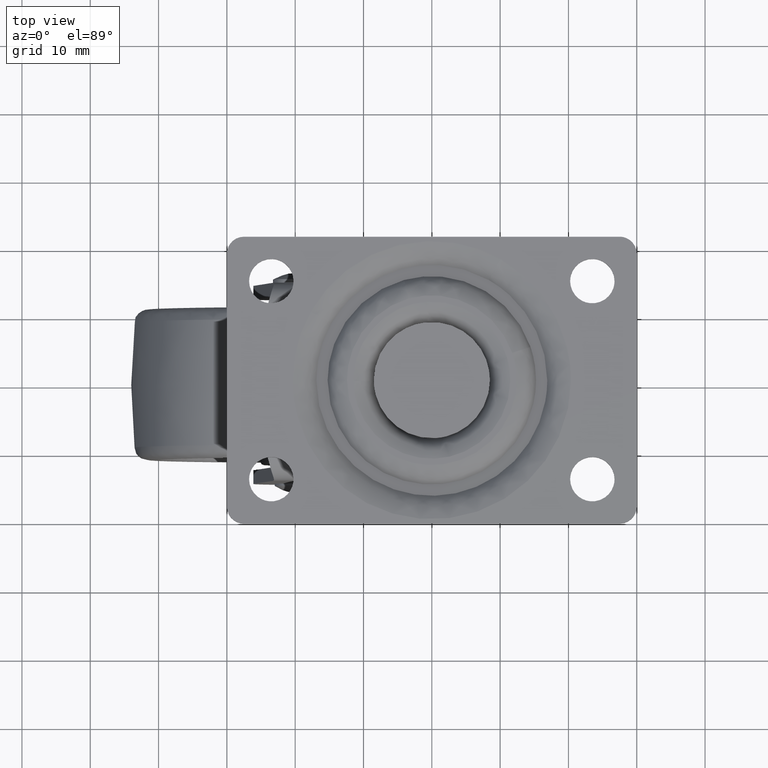
[diagram: clean part render]
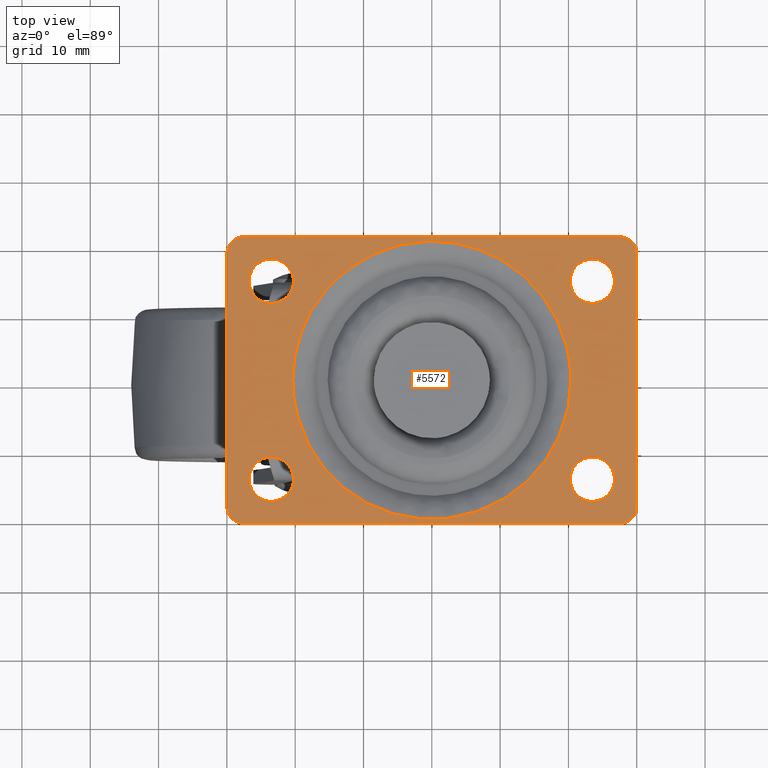
[diagram: same view with one face highlighted and labeled with its STEP entity id]
A machine part, top view. The second image highlights one B-rep face of the part: STEP entity #5572.
In plain terms, the highlighted face is a freeform B-spline surface patch.
Its self-contained STEP definition (entity closure, byte-faithful):
#3399=CARTESIAN_POINT('',(-23.883618262806088,11.272719039338490,-1.064786E-016));
#3400=VERTEX_POINT('',#3399);
#3401=CARTESIAN_POINT('',(-20.250007000000000,14.500000000000000,0.0));
#3402=VERTEX_POINT('',#3401);
#3403=CARTESIAN_POINT('',(-23.883618262806092,11.272719039338483,-1.064786E-016));
#3404=CARTESIAN_POINT('',(-23.692485389042140,11.249999999999996,0.0));
#3405=CARTESIAN_POINT('',(-23.500007000000000,11.250000000000000,0.0));
#3406=CARTESIAN_POINT('',(-20.250007000000007,11.250000000000000,0.0));
#3407=CARTESIAN_POINT('',(-20.250007000000000,14.500000000000000,0.0));
#3415=(BOUNDED_CURVE()B_SPLINE_CURVE(2,(#3403,#3404,#3405,#3406,#3407),.UNSPECIFIED.,.F.,.U.)B_SPLINE_CURVE_WITH_KNOTS((3,2,3),(0.229562473497670,0.250000000000000,0.500000000000000),.UNSPECIFIED.)CURVE()GEOMETRIC_REPRESENTATION_ITEM()RATIONAL_B_SPLINE_CURVE((0.956026754152655,0.976055948312589,1.0,0.707106781186547,1.0))REPRESENTATION_ITEM(''));
#3416=EDGE_CURVE('',#3400,#3402,#3415,.T.);
#3418=CARTESIAN_POINT('',(-23.301599246302029,17.743938094858240,-1.075529E-016));
#3419=VERTEX_POINT('',#3418);
#3420=CARTESIAN_POINT('',(-20.250007000000000,14.500000000000000,0.0));
#3421=CARTESIAN_POINT('',(-20.250006999999997,17.557294717047544,0.0));
#3422=CARTESIAN_POINT('',(-23.301599246302025,17.743938094858240,-1.075529E-016));
#3430=(BOUNDED_CURVE()B_SPLINE_CURVE(2,(#3420,#3421,#3422),.UNSPECIFIED.,.F.,.U.)B_SPLINE_CURVE_WITH_KNOTS((3,3),(0.500000000000000,0.739332962219663),.UNSPECIFIED.)CURVE()GEOMETRIC_REPRESENTATION_ITEM()RATIONAL_B_SPLINE_CURVE((1.0,0.719603993309298,0.976072041625397))REPRESENTATION_ITEM(''));
#3431=EDGE_CURVE('',#3402,#3419,#3430,.T.);
#3498=CARTESIAN_POINT('',(-26.750007000000000,14.500000000000000,0.0));
#3499=VERTEX_POINT('',#3498);
#3500=CARTESIAN_POINT('',(-26.750007000000000,14.500000000000000,0.0));
#3501=CARTESIAN_POINT('',(-26.750006999999997,11.613432790967222,0.0));
#3502=CARTESIAN_POINT('',(-23.883618262806088,11.272719039338481,-1.064786E-016));
#3510=(BOUNDED_CURVE()B_SPLINE_CURVE(2,(#3500,#3501,#3502),.UNSPECIFIED.,.F.,.U.)B_SPLINE_CURVE_WITH_KNOTS((3,3),(0.0,0.229562473497670),.UNSPECIFIED.)CURVE()GEOMETRIC_REPRESENTATION_ITEM()RATIONAL_B_SPLINE_CURVE((1.0,0.731050832873959,0.956026754152655))REPRESENTATION_ITEM(''));
#3511=EDGE_CURVE('',#3499,#3400,#3510,.T.);
#3545=CARTESIAN_POINT('',(-23.301599246302032,17.743938094858244,-1.075529E-016));
#3546=CARTESIAN_POINT('',(-23.400710519069314,17.750000000000004,0.0));
#3547=CARTESIAN_POINT('',(-23.500007000000000,17.750000000000000,0.0));
#3548=CARTESIAN_POINT('',(-26.750006999999997,17.750000000000004,0.0));
#3549=CARTESIAN_POINT('',(-26.750007000000000,14.500000000000000,0.0));
#3557=(BOUNDED_CURVE()B_SPLINE_CURVE(2,(#3545,#3546,#3547,#3548,#3549),.UNSPECIFIED.,.F.,.U.)B_SPLINE_CURVE_WITH_KNOTS((3,2,3),(0.739332962219662,0.750000000000000,1.0),.UNSPECIFIED.)CURVE()GEOMETRIC_REPRESENTATION_ITEM()RATIONAL_B_SPLINE_CURVE((0.976072041625395,0.987502787877248,1.0,0.707106781186547,1.0))REPRESENTATION_ITEM(''));
#3558=EDGE_CURVE('',#3419,#3499,#3557,.T.);
#3585=CARTESIAN_POINT('',(23.116381737193912,11.272719039338490,-1.064786E-016));
#3586=VERTEX_POINT('',#3585);
#3587=CARTESIAN_POINT('',(26.749993000000000,14.500000000000000,0.0));
#3588=VERTEX_POINT('',#3587);
#3589=CARTESIAN_POINT('',(23.116381737193912,11.272719039338483,-1.064786E-016));
#3590=CARTESIAN_POINT('',(23.307514610957860,11.249999999999998,0.0));
#3591=CARTESIAN_POINT('',(23.499993000000000,11.250000000000000,0.0));
#3592=CARTESIAN_POINT('',(26.749993000000003,11.250000000000000,0.0));
#3593=CARTESIAN_POINT('',(26.749993000000000,14.500000000000000,0.0));
#3601=(BOUNDED_CURVE()B_SPLINE_CURVE(2,(#3589,#3590,#3591,#3592,#3593),.UNSPECIFIED.,.F.,.U.)B_SPLINE_CURVE_WITH_KNOTS((3,2,3),(0.229562473497670,0.250000000000000,0.500000000000000),.UNSPECIFIED.)CURVE()GEOMETRIC_REPRESENTATION_ITEM()RATIONAL_B_SPLINE_CURVE((0.956026754152655,0.976055948312589,1.0,0.707106781186547,1.0))REPRESENTATION_ITEM(''));
#3602=EDGE_CURVE('',#3586,#3588,#3601,.T.);
#3604=CARTESIAN_POINT('',(23.698400753697971,17.743938094858240,-1.075529E-016));
#3605=VERTEX_POINT('',#3604);
#3606=CARTESIAN_POINT('',(26.749993000000000,14.500000000000000,0.0));
#3607=CARTESIAN_POINT('',(26.749993000000007,17.557294717047544,0.0));
#3608=CARTESIAN_POINT('',(23.698400753697964,17.743938094858240,-1.075529E-016));
#3616=(BOUNDED_CURVE()B_SPLINE_CURVE(2,(#3606,#3607,#3608),.UNSPECIFIED.,.F.,.U.)B_SPLINE_CURVE_WITH_KNOTS((3,3),(0.500000000000000,0.739332962219663),.UNSPECIFIED.)CURVE()GEOMETRIC_REPRESENTATION_ITEM()RATIONAL_B_SPLINE_CURVE((1.0,0.719603993309298,0.976072041625397))REPRESENTATION_ITEM(''));
#3617=EDGE_CURVE('',#3588,#3605,#3616,.T.);
#3684=CARTESIAN_POINT('',(20.249993000000000,14.500000000000000,0.0));
#3685=VERTEX_POINT('',#3684);
#3686=CARTESIAN_POINT('',(20.249993000000000,14.500000000000000,0.0));
#3687=CARTESIAN_POINT('',(20.249993000000003,11.613432790967225,0.0));
#3688=CARTESIAN_POINT('',(23.116381737193908,11.272719039338485,-1.064786E-016));
#3696=(BOUNDED_CURVE()B_SPLINE_CURVE(2,(#3686,#3687,#3688),.UNSPECIFIED.,.F.,.U.)B_SPLINE_CURVE_WITH_KNOTS((3,3),(0.0,0.229562473497669),.UNSPECIFIED.)CURVE()GEOMETRIC_REPRESENTATION_ITEM()RATIONAL_B_SPLINE_CURVE((1.0,0.731050832873959,0.956026754152654))REPRESENTATION_ITEM(''));
#3697=EDGE_CURVE('',#3685,#3586,#3696,.T.);
#3731=CARTESIAN_POINT('',(23.698400753697968,17.743938094858244,-1.075529E-016));
#3732=CARTESIAN_POINT('',(23.599289480930683,17.750000000000007,0.0));
#3733=CARTESIAN_POINT('',(23.499993000000000,17.750000000000000,0.0));
#3734=CARTESIAN_POINT('',(20.249993000000003,17.750000000000004,0.0));
#3735=CARTESIAN_POINT('',(20.249993000000000,14.500000000000000,0.0));
#3743=(BOUNDED_CURVE()B_SPLINE_CURVE(2,(#3731,#3732,#3733,#3734,#3735),.UNSPECIFIED.,.F.,.U.)B_SPLINE_CURVE_WITH_KNOTS((3,2,3),(0.739332962219662,0.750000000000000,1.0),.UNSPECIFIED.)CURVE()GEOMETRIC_REPRESENTATION_ITEM()RATIONAL_B_SPLINE_CURVE((0.976072041625396,0.987502787877249,1.0,0.707106781186547,1.0))REPRESENTATION_ITEM(''));
#3744=EDGE_CURVE('',#3605,#3685,#3743,.T.);
#3771=CARTESIAN_POINT('',(23.116381737193912,-17.727280960661520,-1.064786E-016));
#3772=VERTEX_POINT('',#3771);
#3773=CARTESIAN_POINT('',(26.749993000000000,-14.500000000000000,0.0));
#3774=VERTEX_POINT('',#3773);
#3775=CARTESIAN_POINT('',(23.116381737193908,-17.727280960661520,-1.064786E-016));
#3776=CARTESIAN_POINT('',(23.307514610957849,-17.750000000000004,0.0));
#3777=CARTESIAN_POINT('',(23.499993000000000,-17.750000000000000,0.0));
#3778=CARTESIAN_POINT('',(26.749993000000003,-17.750000000000004,0.0));
#3779=CARTESIAN_POINT('',(26.749993000000000,-14.500000000000000,0.0));
#3787=(BOUNDED_CURVE()B_SPLINE_CURVE(2,(#3775,#3776,#3777,#3778,#3779),.UNSPECIFIED.,.F.,.U.)B_SPLINE_CURVE_WITH_KNOTS((3,2,3),(0.229562473497669,0.250000000000000,0.500000000000000),.UNSPECIFIED.)CURVE()GEOMETRIC_REPRESENTATION_ITEM()RATIONAL_B_SPLINE_CURVE((0.956026754152654,0.976055948312589,1.0,0.707106781186547,1.0))REPRESENTATION_ITEM(''));
#3788=EDGE_CURVE('',#3772,#3774,#3787,.T.);
#3790=CARTESIAN_POINT('',(23.698400753697971,-11.256061905141760,-1.075529E-016));
#3791=VERTEX_POINT('',#3790);
#3792=CARTESIAN_POINT('',(26.749993000000000,-14.500000000000000,0.0));
#3793=CARTESIAN_POINT('',(26.749993000000007,-11.442705282952456,0.0));
#3794=CARTESIAN_POINT('',(23.698400753697964,-11.256061905141761,-1.075529E-016));
#3802=(BOUNDED_CURVE()B_SPLINE_CURVE(2,(#3792,#3793,#3794),.UNSPECIFIED.,.F.,.U.)B_SPLINE_CURVE_WITH_KNOTS((3,3),(0.500000000000000,0.739332962219663),.UNSPECIFIED.)CURVE()GEOMETRIC_REPRESENTATION_ITEM()RATIONAL_B_SPLINE_CURVE((1.0,0.719603993309298,0.976072041625397))REPRESENTATION_ITEM(''));
#3803=EDGE_CURVE('',#3774,#3791,#3802,.T.);
#3870=CARTESIAN_POINT('',(20.249993000000000,-14.500000000000000,0.0));
#3871=VERTEX_POINT('',#3870);
#3872=CARTESIAN_POINT('',(20.249993000000000,-14.500000000000000,0.0));
#3873=CARTESIAN_POINT('',(20.249993000000003,-17.386567209032769,0.0));
#3874=CARTESIAN_POINT('',(23.116381737193912,-17.727280960661520,-1.064786E-016));
#3882=(BOUNDED_CURVE()B_SPLINE_CURVE(2,(#3872,#3873,#3874),.UNSPECIFIED.,.F.,.U.)B_SPLINE_CURVE_WITH_KNOTS((3,3),(0.0,0.229562473497669),.UNSPECIFIED.)CURVE()GEOMETRIC_REPRESENTATION_ITEM()RATIONAL_B_SPLINE_CURVE((1.0,0.731050832873959,0.956026754152654))REPRESENTATION_ITEM(''));
#3883=EDGE_CURVE('',#3871,#3772,#3882,.T.);
#3917=CARTESIAN_POINT('',(23.698400753697968,-11.256061905141761,-1.075529E-016));
#3918=CARTESIAN_POINT('',(23.599289480930683,-11.250000000000002,0.0));
#3919=CARTESIAN_POINT('',(23.499993000000000,-11.250000000000000,0.0));
#3920=CARTESIAN_POINT('',(20.249993000000003,-11.250000000000000,0.0));
#3921=CARTESIAN_POINT('',(20.249993000000000,-14.500000000000000,0.0));
#3929=(BOUNDED_CURVE()B_SPLINE_CURVE(2,(#3917,#3918,#3919,#3920,#3921),.UNSPECIFIED.,.F.,.U.)B_SPLINE_CURVE_WITH_KNOTS((3,2,3),(0.739332962219662,0.750000000000000,1.0),.UNSPECIFIED.)CURVE()GEOMETRIC_REPRESENTATION_ITEM()RATIONAL_B_SPLINE_CURVE((0.976072041625396,0.987502787877249,1.0,0.707106781186547,1.0))REPRESENTATION_ITEM(''));
#3930=EDGE_CURVE('',#3791,#3871,#3929,.T.);
#3957=CARTESIAN_POINT('',(-23.883618262806088,-17.727280960661520,-1.064786E-016));
#3958=VERTEX_POINT('',#3957);
#3959=CARTESIAN_POINT('',(-20.250007000000000,-14.500000000000000,0.0));
#3960=VERTEX_POINT('',#3959);
#3961=CARTESIAN_POINT('',(-23.883618262806088,-17.727280960661520,-1.064786E-016));
#3962=CARTESIAN_POINT('',(-23.692485389042147,-17.750000000000007,0.0));
#3963=CARTESIAN_POINT('',(-23.500007000000000,-17.750000000000000,0.0));
#3964=CARTESIAN_POINT('',(-20.250007000000007,-17.750000000000004,0.0));
#3965=CARTESIAN_POINT('',(-20.250007000000000,-14.500000000000000,0.0));
#3973=(BOUNDED_CURVE()B_SPLINE_CURVE(2,(#3961,#3962,#3963,#3964,#3965),.UNSPECIFIED.,.F.,.U.)B_SPLINE_CURVE_WITH_KNOTS((3,2,3),(0.229562473497670,0.250000000000000,0.500000000000000),.UNSPECIFIED.)CURVE()GEOMETRIC_REPRESENTATION_ITEM()RATIONAL_B_SPLINE_CURVE((0.956026754152655,0.976055948312589,1.0,0.707106781186547,1.0))REPRESENTATION_ITEM(''));
#3974=EDGE_CURVE('',#3958,#3960,#3973,.T.);
#3976=CARTESIAN_POINT('',(-23.301599246302029,-11.256061905141760,-1.075529E-016));
#3977=VERTEX_POINT('',#3976);
#3978=CARTESIAN_POINT('',(-20.250007000000000,-14.500000000000000,0.0));
#3979=CARTESIAN_POINT('',(-20.250006999999997,-11.442705282952456,0.0));
#3980=CARTESIAN_POINT('',(-23.301599246302025,-11.256061905141761,-1.075529E-016));
#3988=(BOUNDED_CURVE()B_SPLINE_CURVE(2,(#3978,#3979,#3980),.UNSPECIFIED.,.F.,.U.)B_SPLINE_CURVE_WITH_KNOTS((3,3),(0.500000000000000,0.739332962219663),.UNSPECIFIED.)CURVE()GEOMETRIC_REPRESENTATION_ITEM()RATIONAL_B_SPLINE_CURVE((1.0,0.719603993309298,0.976072041625397))REPRESENTATION_ITEM(''));
#3989=EDGE_CURVE('',#3960,#3977,#3988,.T.);
#4056=CARTESIAN_POINT('',(-26.750007000000000,-14.500000000000000,0.0));
#4057=VERTEX_POINT('',#4056);
#4058=CARTESIAN_POINT('',(-26.750007000000000,-14.500000000000000,0.0));
#4059=CARTESIAN_POINT('',(-26.750007000000000,-17.386567209032780,0.0));
#4060=CARTESIAN_POINT('',(-23.883618262806092,-17.727280960661517,-1.064786E-016));
#4068=(BOUNDED_CURVE()B_SPLINE_CURVE(2,(#4058,#4059,#4060),.UNSPECIFIED.,.F.,.U.)B_SPLINE_CURVE_WITH_KNOTS((3,3),(0.0,0.229562473497670),.UNSPECIFIED.)CURVE()GEOMETRIC_REPRESENTATION_ITEM()RATIONAL_B_SPLINE_CURVE((1.0,0.731050832873958,0.956026754152655))REPRESENTATION_ITEM(''));
#4069=EDGE_CURVE('',#4057,#3958,#4068,.T.);
#4103=CARTESIAN_POINT('',(-23.301599246302032,-11.256061905141760,-1.075529E-016));
#4104=CARTESIAN_POINT('',(-23.400710519069314,-11.250000000000005,0.0));
#4105=CARTESIAN_POINT('',(-23.500007000000000,-11.250000000000000,0.0));
#4106=CARTESIAN_POINT('',(-26.750006999999997,-11.250000000000000,0.0));
#4107=CARTESIAN_POINT('',(-26.750007000000000,-14.500000000000000,0.0));
#4115=(BOUNDED_CURVE()B_SPLINE_CURVE(2,(#4103,#4104,#4105,#4106,#4107),.UNSPECIFIED.,.F.,.U.)B_SPLINE_CURVE_WITH_KNOTS((3,2,3),(0.739332962219662,0.750000000000000,1.0),.UNSPECIFIED.)CURVE()GEOMETRIC_REPRESENTATION_ITEM()RATIONAL_B_SPLINE_CURVE((0.976072041625395,0.987502787877248,1.0,0.707106781186547,1.0))REPRESENTATION_ITEM(''));
#4116=EDGE_CURVE('',#3977,#4057,#4115,.T.);
#4629=CARTESIAN_POINT('',(-17.720498814197430,10.033939125784650,-6.109730E-016));
#4630=VERTEX_POINT('',#4629);
#4644=CARTESIAN_POINT('',(-20.364087252914331,0.0,0.0));
#4645=VERTEX_POINT('',#4644);
#4646=CARTESIAN_POINT('',(-20.364087252914331,0.0,0.0));
#4647=CARTESIAN_POINT('',(-20.364087252914331,5.365215637857751,0.0));
#4648=CARTESIAN_POINT('',(-17.720498814197430,10.033939125784650,-6.109730E-016));
#4656=(BOUNDED_CURVE()B_SPLINE_CURVE(2,(#4646,#4647,#4648),.UNSPECIFIED.,.F.,.U.)B_SPLINE_CURVE_WITH_KNOTS((3,3),(0.0,0.083983638485495),.UNSPECIFIED.)CURVE()GEOMETRIC_REPRESENTATION_ITEM()RATIONAL_B_SPLINE_CURVE((1.0,0.901607047185272,0.869321279800244))REPRESENTATION_ITEM(''));
#4657=EDGE_CURVE('',#4645,#4630,#4656,.T.);
#4659=CARTESIAN_POINT('',(20.364073252914469,0.0,0.0));
#4660=VERTEX_POINT('',#4659);
#4661=CARTESIAN_POINT('',(20.364073252914469,0.0,0.0));
#4662=CARTESIAN_POINT('',(20.364073252914473,-20.364080252914405,0.0));
#4663=CARTESIAN_POINT('',(-0.000006999999925,-20.364080252914398,0.0));
#4664=CARTESIAN_POINT('',(-20.364087252914320,-20.364080252914405,0.0));
#4665=CARTESIAN_POINT('',(-20.364087252914331,0.0,0.0));
#4673=(BOUNDED_CURVE()B_SPLINE_CURVE(2,(#4661,#4662,#4663,#4664,#4665),.UNSPECIFIED.,.F.,.U.)B_SPLINE_CURVE_WITH_KNOTS((3,2,3),(0.500000000000000,0.750000000000000,1.0),.UNSPECIFIED.)CURVE()GEOMETRIC_REPRESENTATION_ITEM()RATIONAL_B_SPLINE_CURVE((1.0,0.707106781186548,1.0,0.707106781186548,1.0))REPRESENTATION_ITEM(''));
#4674=EDGE_CURVE('',#4660,#4645,#4673,.T.);
#4676=CARTESIAN_POINT('',(10.033932125784720,17.720491814197491,-6.720702E-016));
#4677=VERTEX_POINT('',#4676);
#4678=CARTESIAN_POINT('',(10.033932125784723,17.720491814197498,-6.720702E-016));
#4679=CARTESIAN_POINT('',(20.364073252914476,11.871218086195571,0.0));
#4680=CARTESIAN_POINT('',(20.364073252914469,0.0,0.0));
#4688=(BOUNDED_CURVE()B_SPLINE_CURVE(2,(#4678,#4679,#4680),.UNSPECIFIED.,.F.,.U.)B_SPLINE_CURVE_WITH_KNOTS((3,3),(0.333983638485496,0.500000000000000),.UNSPECIFIED.)CURVE()GEOMETRIC_REPRESENTATION_ITEM()RATIONAL_B_SPLINE_CURVE((0.869321279800244,0.805499734001276,1.0))REPRESENTATION_ITEM(''));
#4689=EDGE_CURVE('',#4677,#4660,#4688,.T.);
#4740=CARTESIAN_POINT('',(-17.720498814197430,10.033939125784650,-6.109730E-016));
#4741=CARTESIAN_POINT('',(-11.871225086195494,20.364080252914402,0.0));
#4742=CARTESIAN_POINT('',(-0.000006999999925,20.364080252914398,0.0));
#4743=CARTESIAN_POINT('',(5.365208637857838,20.364080252914402,0.0));
#4744=CARTESIAN_POINT('',(10.033932125784723,17.720491814197498,-6.720702E-016));
#4752=(BOUNDED_CURVE()B_SPLINE_CURVE(2,(#4740,#4741,#4742,#4743,#4744),.UNSPECIFIED.,.F.,.U.)B_SPLINE_CURVE_WITH_KNOTS((3,2,3),(0.083983638485495,0.250000000000000,0.333983638485496),.UNSPECIFIED.)CURVE()GEOMETRIC_REPRESENTATION_ITEM()RATIONAL_B_SPLINE_CURVE((0.869321279800244,0.805499734001276,1.0,0.901607047185271,0.869321279800244))REPRESENTATION_ITEM(''));
#4753=EDGE_CURVE('',#4630,#4677,#4752,.T.);
#5447=CARTESIAN_POINT('',(-32.997008010182597,23.097899918595861,0.0));
#5448=CARTESIAN_POINT('',(32.996994546624308,23.097899918595861,0.0));
#5449=CARTESIAN_POINT('',(-32.997008010182597,-23.097901045123638,0.0));
#5450=CARTESIAN_POINT('',(32.996994546624308,-23.097901045123638,0.0));
#5451=B_SPLINE_SURFACE_WITH_KNOTS('',1,1,((#5447,#5449),(#5448,#5450)),.UNSPECIFIED.,.F.,.F.,.U.,(2,2),(2,2),(0.0,65.994002556806919),(0.0,46.195800963719492),.UNSPECIFIED.);
#5452=CARTESIAN_POINT('',(29.999993000000000,18.500000000000000,0.0));
#5453=VERTEX_POINT('',#5452);
#5454=CARTESIAN_POINT('',(27.499993000000000,21.0,0.0));
#5455=VERTEX_POINT('',#5454);
#5456=CARTESIAN_POINT('',(29.999993000000000,18.500000000000000,0.0));
#5457=CARTESIAN_POINT('',(29.999993000000000,21.000000000000004,0.0));
#5458=CARTESIAN_POINT('',(27.499993000000000,21.0,0.0));
#5466=(BOUNDED_CURVE()B_SPLINE_CURVE(2,(#5456,#5457,#5458),.UNSPECIFIED.,.F.,.U.)CURVE()GEOMETRIC_REPRESENTATION_ITEM()QUASI_UNIFORM_CURVE()RATIONAL_B_SPLINE_CURVE((1.0,0.707106781186548,1.0))REPRESENTATION_ITEM(''));
#5467=EDGE_CURVE('',#5453,#5455,#5466,.T.);
#5468=ORIENTED_EDGE('',*,*,#5467,.T.);
#5469=CARTESIAN_POINT('',(-27.500007000000100,21.0,0.0));
#5470=VERTEX_POINT('',#5469);
#5471=CARTESIAN_POINT('',(27.499993000000000,21.0,0.0));
#5472=CARTESIAN_POINT('',(-27.500007000000100,21.0,0.0));
#5473=QUASI_UNIFORM_CURVE('',1,(#5471,#5472),.UNSPECIFIED.,.F.,.U.);
#5474=EDGE_CURVE('',#5455,#5470,#5473,.T.);
#5475=ORIENTED_EDGE('',*,*,#5474,.T.);
#5476=CARTESIAN_POINT('',(-30.000007000000100,18.500000000000000,0.0));
#5477=VERTEX_POINT('',#5476);
#5478=CARTESIAN_POINT('',(-27.500007000000100,21.0,0.0));
#5479=CARTESIAN_POINT('',(-30.000007000000107,21.000000000000004,0.0));
#5480=CARTESIAN_POINT('',(-30.000007000000100,18.500000000000000,0.0));
#5488=(BOUNDED_CURVE()B_SPLINE_CURVE(2,(#5478,#5479,#5480),.UNSPECIFIED.,.F.,.U.)CURVE()GEOMETRIC_REPRESENTATION_ITEM()QUASI_UNIFORM_CURVE()RATIONAL_B_SPLINE_CURVE((1.0,0.707106781186548,1.0))REPRESENTATION_ITEM(''));
#5489=EDGE_CURVE('',#5470,#5477,#5488,.T.);
#5490=ORIENTED_EDGE('',*,*,#5489,.T.);
#5491=CARTESIAN_POINT('',(-30.000007000000000,-18.500000000000000,0.0));
#5492=VERTEX_POINT('',#5491);
#5493=CARTESIAN_POINT('',(-30.000007000000100,18.500000000000000,0.0));
#5494=CARTESIAN_POINT('',(-30.000007000000000,-18.500000000000000,0.0));
#5495=QUASI_UNIFORM_CURVE('',1,(#5493,#5494),.UNSPECIFIED.,.F.,.U.);
#5496=EDGE_CURVE('',#5477,#5492,#5495,.T.);
#5497=ORIENTED_EDGE('',*,*,#5496,.T.);
#5498=CARTESIAN_POINT('',(-27.500007000000100,-21.0,0.0));
#5499=VERTEX_POINT('',#5498);
#5500=CARTESIAN_POINT('',(-30.000007000000100,-18.500000000000000,0.0));
#5501=CARTESIAN_POINT('',(-30.000007000000107,-21.000000000000004,0.0));
#5502=CARTESIAN_POINT('',(-27.500007000000100,-21.0,0.0));
#5510=(BOUNDED_CURVE()B_SPLINE_CURVE(2,(#5500,#5501,#5502),.UNSPECIFIED.,.F.,.U.)CURVE()GEOMETRIC_REPRESENTATION_ITEM()QUASI_UNIFORM_CURVE()RATIONAL_B_SPLINE_CURVE((1.0,0.707106781186548,1.0))REPRESENTATION_ITEM(''));
#5511=EDGE_CURVE('',#5492,#5499,#5510,.T.);
#5512=ORIENTED_EDGE('',*,*,#5511,.T.);
#5513=CARTESIAN_POINT('',(27.499993000000000,-21.0,0.0));
#5514=VERTEX_POINT('',#5513);
#5515=CARTESIAN_POINT('',(-27.500007000000100,-21.0,0.0));
#5516=CARTESIAN_POINT('',(27.499993000000000,-21.0,0.0));
#5517=QUASI_UNIFORM_CURVE('',1,(#5515,#5516),.UNSPECIFIED.,.F.,.U.);
#5518=EDGE_CURVE('',#5499,#5514,#5517,.T.);
#5519=ORIENTED_EDGE('',*,*,#5518,.T.);
#5520=CARTESIAN_POINT('',(29.999993000000000,-18.500000000000000,0.0));
#5521=VERTEX_POINT('',#5520);
#5522=CARTESIAN_POINT('',(27.499993000000000,-21.0,0.0));
#5523=CARTESIAN_POINT('',(29.999993000000000,-21.000000000000004,0.0));
#5524=CARTESIAN_POINT('',(29.999993000000000,-18.500000000000000,0.0));
#5532=(BOUNDED_CURVE()B_SPLINE_CURVE(2,(#5522,#5523,#5524),.UNSPECIFIED.,.F.,.U.)CURVE()GEOMETRIC_REPRESENTATION_ITEM()QUASI_UNIFORM_CURVE()RATIONAL_B_SPLINE_CURVE((1.0,0.707106781186548,1.0))REPRESENTATION_ITEM(''));
#5533=EDGE_CURVE('',#5514,#5521,#5532,.T.);
#5534=ORIENTED_EDGE('',*,*,#5533,.T.);
#5535=CARTESIAN_POINT('',(29.999993000000000,-18.500000000000000,0.0));
#5536=CARTESIAN_POINT('',(29.999993000000000,18.500000000000000,0.0));
#5537=QUASI_UNIFORM_CURVE('',1,(#5535,#5536),.UNSPECIFIED.,.F.,.U.);
#5538=EDGE_CURVE('',#5521,#5453,#5537,.T.);
#5539=ORIENTED_EDGE('',*,*,#5538,.T.);
#5540=EDGE_LOOP('',(#5468,#5475,#5490,#5497,#5512,#5519,#5534,#5539));
#5541=FACE_OUTER_BOUND('',#5540,.T.);
#5542=ORIENTED_EDGE('',*,*,#4674,.T.);
#5543=ORIENTED_EDGE('',*,*,#4657,.T.);
#5544=ORIENTED_EDGE('',*,*,#4753,.T.);
#5545=ORIENTED_EDGE('',*,*,#4689,.T.);
#5546=EDGE_LOOP('',(#5542,#5543,#5544,#5545));
#5547=FACE_BOUND('',#5546,.T.);
#5548=ORIENTED_EDGE('',*,*,#3989,.F.);
#5549=ORIENTED_EDGE('',*,*,#3974,.F.);
#5550=ORIENTED_EDGE('',*,*,#4069,.F.);
#5551=ORIENTED_EDGE('',*,*,#4116,.F.);
#5552=EDGE_LOOP('',(#5548,#5549,#5550,#5551));
#5553=FACE_BOUND('',#5552,.T.);
#5554=ORIENTED_EDGE('',*,*,#3803,.F.);
#5555=ORIENTED_EDGE('',*,*,#3788,.F.);
#5556=ORIENTED_EDGE('',*,*,#3883,.F.);
#5557=ORIENTED_EDGE('',*,*,#3930,.F.);
#5558=EDGE_LOOP('',(#5554,#5555,#5556,#5557));
#5559=FACE_BOUND('',#5558,.T.);
#5560=ORIENTED_EDGE('',*,*,#3617,.F.);
#5561=ORIENTED_EDGE('',*,*,#3602,.F.);
#5562=ORIENTED_EDGE('',*,*,#3697,.F.);
#5563=ORIENTED_EDGE('',*,*,#3744,.F.);
#5564=EDGE_LOOP('',(#5560,#5561,#5562,#5563));
#5565=FACE_BOUND('',#5564,.T.);
#5566=ORIENTED_EDGE('',*,*,#3431,.F.);
#5567=ORIENTED_EDGE('',*,*,#3416,.F.);
#5568=ORIENTED_EDGE('',*,*,#3511,.F.);
#5569=ORIENTED_EDGE('',*,*,#3558,.F.);
#5570=EDGE_LOOP('',(#5566,#5567,#5568,#5569));
#5571=FACE_BOUND('',#5570,.T.);
#5572=ADVANCED_FACE('',(#5541,#5547,#5553,#5559,#5565,#5571),#5451,.F.);